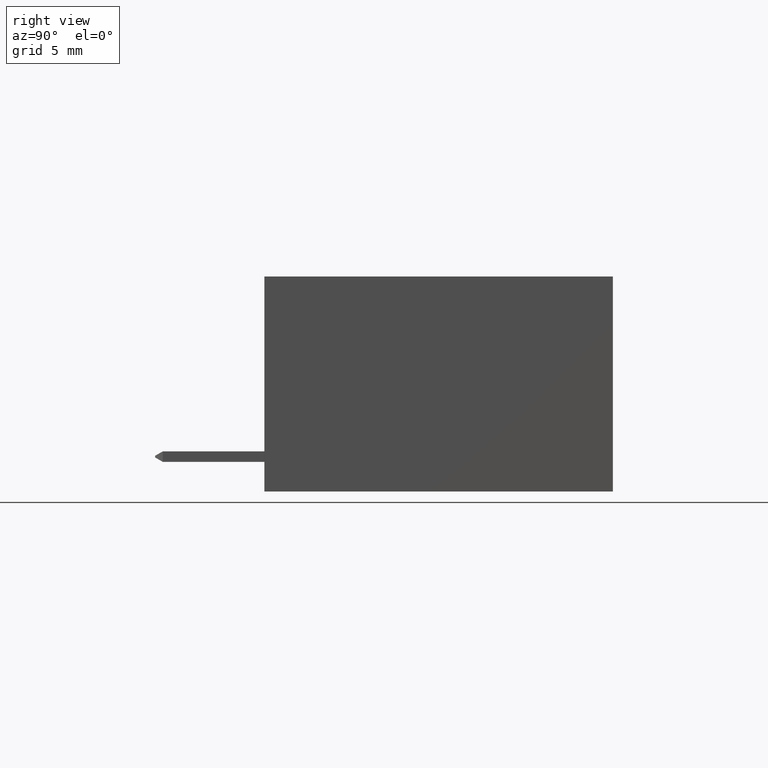
[diagram: clean part render]
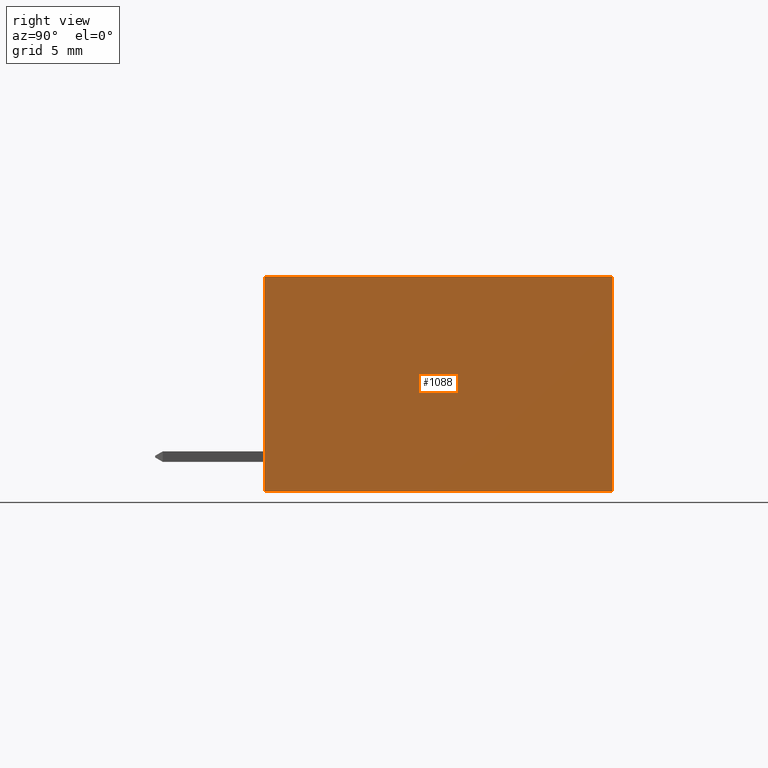
[diagram: same view with one face highlighted and labeled with its STEP entity id]
A machine part, right view. The second image highlights one B-rep face of the part: STEP entity #1088.
In plain terms, the highlighted planar face has unit normal (-1, 0, 0).
Its self-contained STEP definition (entity closure, byte-faithful):
#82 = DIRECTION ( 'NONE',  ( -0.0000000000000000000, -0.0000000000000000000, 1.000000000000000000 ) ) ;
#145 = CARTESIAN_POINT ( 'NONE',  ( 1.172500000000000098, 0.5999999999999999778, -0.3699999999999999400 ) ) ;
#176 = VERTEX_POINT ( 'NONE', #145 ) ;
#529 = DIRECTION ( 'NONE',  ( -0.0000000000000000000, 1.000000000000000000, -0.0000000000000000000 ) ) ;
#678 = EDGE_CURVE ( 'NONE', #176, #1925, #6101, .T. ) ;
#759 = DIRECTION ( 'NONE',  ( -0.0000000000000000000, 1.000000000000000000, -0.0000000000000000000 ) ) ;
#1023 = CARTESIAN_POINT ( 'NONE',  ( 1.172500000000000098, 0.0000000000000000000, 0.0000000000000000000 ) ) ;
#1088 = ADVANCED_FACE ( 'NONE', ( #5300 ), #5223, .F. ) ;
#1538 = CARTESIAN_POINT ( 'NONE',  ( 1.172500000000000098, 0.0000000000000000000, 0.0000000000000000000 ) ) ;
#1710 = EDGE_LOOP ( 'NONE', ( #6492, #6446, #1894, #5814 ) ) ;
#1773 = CARTESIAN_POINT ( 'NONE',  ( 1.172500000000000098, 0.5999999999999999778, 0.0000000000000000000 ) ) ;
#1894 = ORIENTED_EDGE ( 'NONE', *, *, #3707, .F. ) ;
#1925 = VERTEX_POINT ( 'NONE', #4461 ) ;
#2501 = EDGE_CURVE ( 'NONE', #4083, #1925, #5105, .T. ) ;
#2719 = VECTOR ( 'NONE', #82, 39.37007874015748143 ) ;
#3555 = CARTESIAN_POINT ( 'NONE',  ( 1.172500000000000098, 0.0000000000000000000, -0.3699999999999999400 ) ) ;
#3707 = EDGE_CURVE ( 'NONE', #4928, #4083, #4380, .T. ) ;
#3779 = VECTOR ( 'NONE', #6059, 39.37007874015748143 ) ;
#4083 = VERTEX_POINT ( 'NONE', #1023 ) ;
#4380 = LINE ( 'NONE', #7471, #2719 ) ;
#4461 = CARTESIAN_POINT ( 'NONE',  ( 1.172500000000000098, 0.5999999999999999778, 0.0000000000000000000 ) ) ;
#4758 = VECTOR ( 'NONE', #759, 39.37007874015748143 ) ;
#4904 = EDGE_CURVE ( 'NONE', #4928, #176, #5514, .T. ) ;
#4928 = VERTEX_POINT ( 'NONE', #7839 ) ;
#5036 = VECTOR ( 'NONE', #529, 39.37007874015748143 ) ;
#5105 = LINE ( 'NONE', #6904, #4758 ) ;
#5223 = PLANE ( 'NONE',  #6658 ) ;
#5300 = FACE_OUTER_BOUND ( 'NONE', #1710, .T. ) ;
#5340 = DIRECTION ( 'NONE',  ( -0.0000000000000000000, 0.0000000000000000000, 1.000000000000000000 ) ) ;
#5514 = LINE ( 'NONE', #3555, #5036 ) ;
#5814 = ORIENTED_EDGE ( 'NONE', *, *, #4904, .T. ) ;
#5938 = DIRECTION ( 'NONE',  ( -1.000000000000000000, 0.0000000000000000000, -0.0000000000000000000 ) ) ;
#6059 = DIRECTION ( 'NONE',  ( -0.0000000000000000000, -0.0000000000000000000, 1.000000000000000000 ) ) ;
#6101 = LINE ( 'NONE', #1773, #3779 ) ;
#6446 = ORIENTED_EDGE ( 'NONE', *, *, #2501, .F. ) ;
#6492 = ORIENTED_EDGE ( 'NONE', *, *, #678, .T. ) ;
#6658 = AXIS2_PLACEMENT_3D ( 'NONE', #1538, #5938, #5340 ) ;
#6904 = CARTESIAN_POINT ( 'NONE',  ( 1.172500000000000098, 0.0000000000000000000, 0.0000000000000000000 ) ) ;
#7471 = CARTESIAN_POINT ( 'NONE',  ( 1.172500000000000098, 0.0000000000000000000, 0.0000000000000000000 ) ) ;
#7839 = CARTESIAN_POINT ( 'NONE',  ( 1.172500000000000098, 0.0000000000000000000, -0.3699999999999999400 ) ) ;